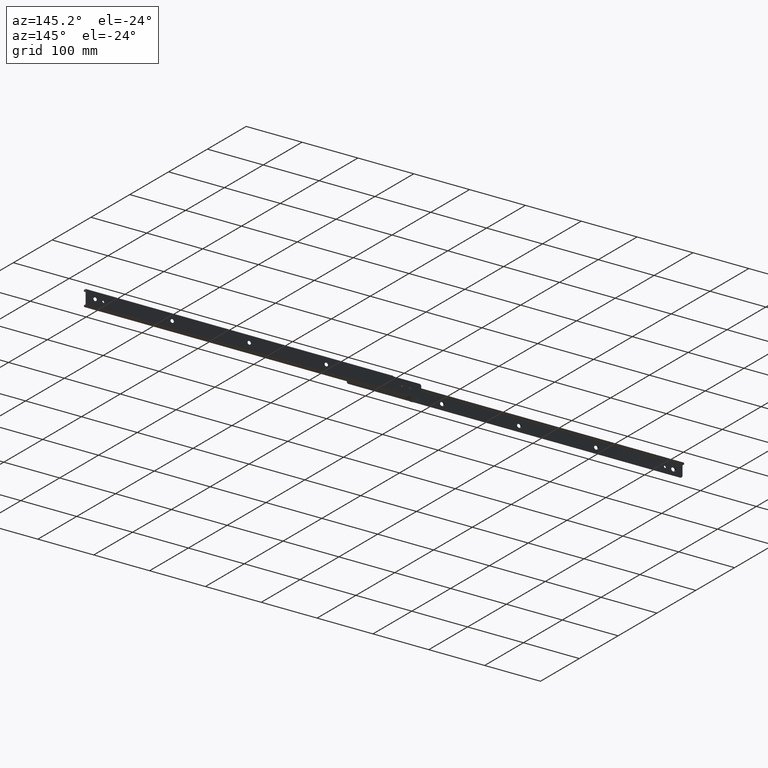
[diagram: clean part render]
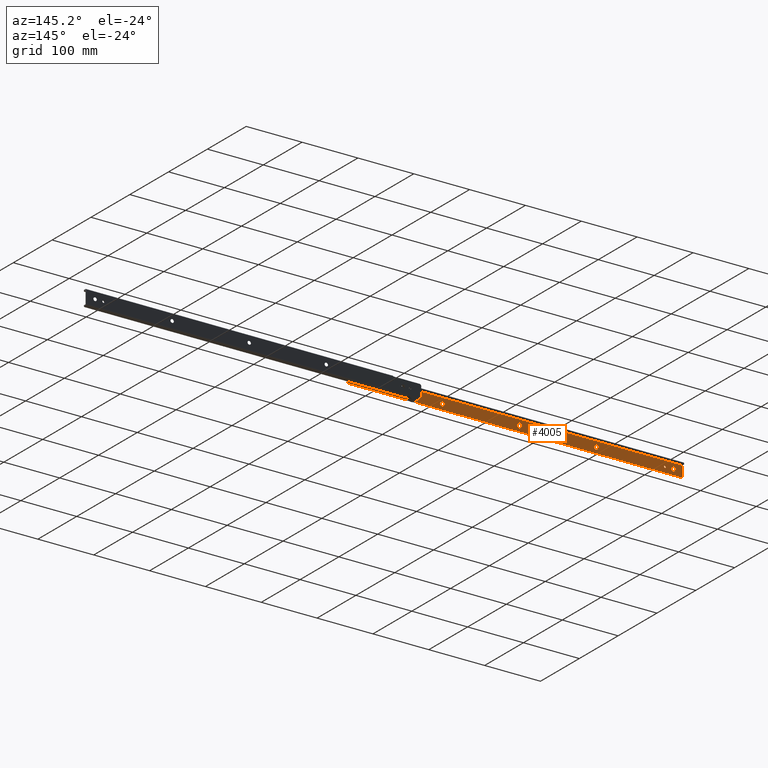
[diagram: same view with one face highlighted and labeled with its STEP entity id]
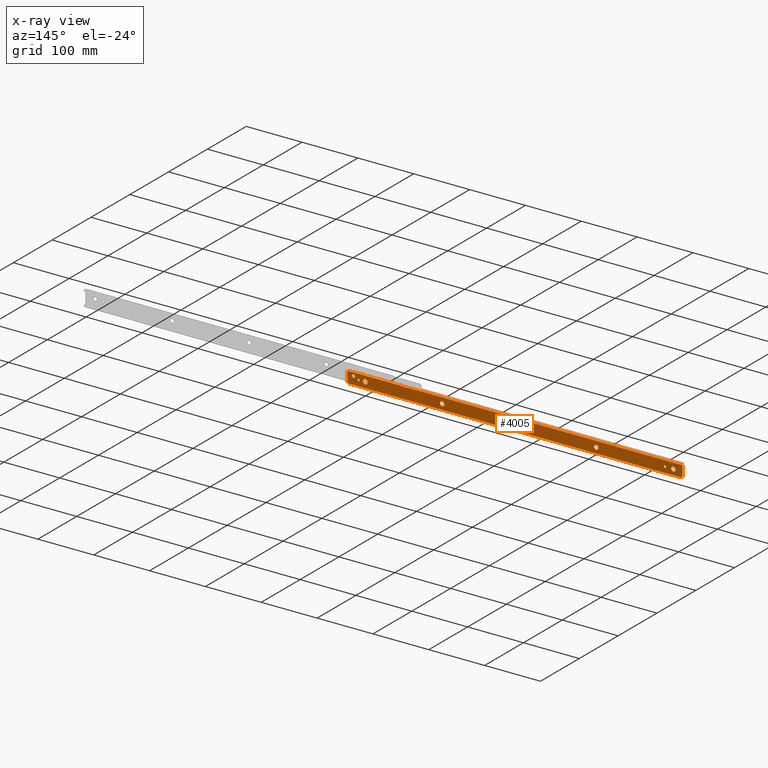
[diagram: x-ray of the same camera — body ghosted, the highlighted face saturated]
A machine part, auxiliary view. The second image highlights one B-rep face of the part: STEP entity #4005.
The next image is the same camera in x-ray: the body ghosted, the highlighted face saturated — about 0% of this face is hidden behind the body in this view.
In plain terms, the highlighted face is a freeform B-spline surface patch.
Its self-contained STEP definition (entity closure, byte-faithful):
#1375=CARTESIAN_POINT('',(93.0,-10.400000000000000,-7.299999999999800));
#1376=VERTEX_POINT('',#1375);
#1377=CARTESIAN_POINT('',(88.713255461834819,-10.399999988952240,-11.262625813513750));
#1378=VERTEX_POINT('',#1377);
#1379=CARTESIAN_POINT('',(93.0,-10.400000000000000,-7.299999999999800));
#1380=CARTESIAN_POINT('',(89.025121023809731,-10.400000000000000,-7.299999999999800));
#1381=CARTESIAN_POINT('',(88.713255461834819,-10.399999988952239,-11.262625813513758));
#1389=(BOUNDED_CURVE()B_SPLINE_CURVE(2,(#1379,#1380,#1381),.UNSPECIFIED.,.F.,.U.)B_SPLINE_CURVE_WITH_KNOTS((3,3),(0.500000000000000,0.736331294702170),.UNSPECIFIED.)CURVE()GEOMETRIC_REPRESENTATION_ITEM()RATIONAL_B_SPLINE_CURVE((1.0,0.723120665553323,0.969723343795113))REPRESENTATION_ITEM(''));
#1390=EDGE_CURVE('',#1376,#1378,#1389,.T.);
#1392=CARTESIAN_POINT('',(97.286744538165181,-10.399999988952240,-11.937374186485849));
#1393=VERTEX_POINT('',#1392);
#1394=CARTESIAN_POINT('',(97.286744538165181,-10.399999988952239,-11.937374186485846));
#1395=CARTESIAN_POINT('',(97.299999999999997,-10.400000000000000,-11.768947534628939));
#1396=CARTESIAN_POINT('',(97.299999999999997,-10.400000000000000,-11.599999999999801));
#1397=CARTESIAN_POINT('',(97.299999999999997,-10.400000000000000,-7.299999999999800));
#1398=CARTESIAN_POINT('',(93.0,-10.400000000000000,-7.299999999999800));
#1406=(BOUNDED_CURVE()B_SPLINE_CURVE(2,(#1394,#1395,#1396,#1397,#1398),.UNSPECIFIED.,.F.,.U.)B_SPLINE_CURVE_WITH_KNOTS((3,2,3),(0.236331294702171,0.250000000000000,0.500000000000000),.UNSPECIFIED.)CURVE()GEOMETRIC_REPRESENTATION_ITEM()RATIONAL_B_SPLINE_CURVE((0.969723343795114,0.983986115633225,1.0,0.707106781186547,1.0))REPRESENTATION_ITEM(''));
#1407=EDGE_CURVE('',#1393,#1376,#1406,.T.);
#1474=CARTESIAN_POINT('',(93.0,-10.400000000000000,-15.899999999999800));
#1475=VERTEX_POINT('',#1474);
#1476=CARTESIAN_POINT('',(88.713255461834819,-10.399999988952237,-11.262625813513752));
#1477=CARTESIAN_POINT('',(88.700000000000003,-10.400000000000000,-11.431052465370664));
#1478=CARTESIAN_POINT('',(88.700000000000003,-10.400000000000000,-11.599999999999801));
#1479=CARTESIAN_POINT('',(88.700000000000003,-10.400000000000000,-15.899999999999794));
#1480=CARTESIAN_POINT('',(93.0,-10.400000000000000,-15.899999999999800));
#1488=(BOUNDED_CURVE()B_SPLINE_CURVE(2,(#1476,#1477,#1478,#1479,#1480),.UNSPECIFIED.,.F.,.U.)B_SPLINE_CURVE_WITH_KNOTS((3,2,3),(0.736331294702171,0.750000000000000,1.0),.UNSPECIFIED.)CURVE()GEOMETRIC_REPRESENTATION_ITEM()RATIONAL_B_SPLINE_CURVE((0.969723343795114,0.983986115633225,1.0,0.707106781186547,1.0))REPRESENTATION_ITEM(''));
#1489=EDGE_CURVE('',#1378,#1475,#1488,.T.);
#1523=CARTESIAN_POINT('',(93.0,-10.400000000000000,-15.899999999999800));
#1524=CARTESIAN_POINT('',(96.974878976190297,-10.400000000000002,-15.899999999999796));
#1525=CARTESIAN_POINT('',(97.286744538165181,-10.399999988952237,-11.937374186485844));
#1533=(BOUNDED_CURVE()B_SPLINE_CURVE(2,(#1523,#1524,#1525),.UNSPECIFIED.,.F.,.U.)B_SPLINE_CURVE_WITH_KNOTS((3,3),(0.0,0.236331294702171),.UNSPECIFIED.)CURVE()GEOMETRIC_REPRESENTATION_ITEM()RATIONAL_B_SPLINE_CURVE((1.0,0.723120665553322,0.969723343795114))REPRESENTATION_ITEM(''));
#1534=EDGE_CURVE('',#1475,#1393,#1533,.T.);
#1557=CARTESIAN_POINT('',(-45.0,-10.400000000000000,-7.299999999999800));
#1558=VERTEX_POINT('',#1557);
#1559=CARTESIAN_POINT('',(-49.286744538165202,-10.399999988952240,-11.262625813513750));
#1560=VERTEX_POINT('',#1559);
#1561=CARTESIAN_POINT('',(-45.0,-10.400000000000000,-7.299999999999800));
#1562=CARTESIAN_POINT('',(-48.974878976190276,-10.400000000000000,-7.299999999999800));
#1563=CARTESIAN_POINT('',(-49.286744538165195,-10.399999988952239,-11.262625813513758));
#1571=(BOUNDED_CURVE()B_SPLINE_CURVE(2,(#1561,#1562,#1563),.UNSPECIFIED.,.F.,.U.)B_SPLINE_CURVE_WITH_KNOTS((3,3),(0.500000000000000,0.736331294702170),.UNSPECIFIED.)CURVE()GEOMETRIC_REPRESENTATION_ITEM()RATIONAL_B_SPLINE_CURVE((1.0,0.723120665553323,0.969723343795113))REPRESENTATION_ITEM(''));
#1572=EDGE_CURVE('',#1558,#1560,#1571,.T.);
#1574=CARTESIAN_POINT('',(-40.713255461834819,-10.399999988952240,-11.937374186485849));
#1575=VERTEX_POINT('',#1574);
#1576=CARTESIAN_POINT('',(-40.713255461834819,-10.399999988952239,-11.937374186485846));
#1577=CARTESIAN_POINT('',(-40.700000000000003,-10.400000000000000,-11.768947534628939));
#1578=CARTESIAN_POINT('',(-40.700000000000003,-10.400000000000000,-11.599999999999801));
#1579=CARTESIAN_POINT('',(-40.699999999999996,-10.400000000000000,-7.299999999999800));
#1580=CARTESIAN_POINT('',(-45.0,-10.400000000000000,-7.299999999999800));
#1588=(BOUNDED_CURVE()B_SPLINE_CURVE(2,(#1576,#1577,#1578,#1579,#1580),.UNSPECIFIED.,.F.,.U.)B_SPLINE_CURVE_WITH_KNOTS((3,2,3),(0.236331294702171,0.250000000000000,0.500000000000000),.UNSPECIFIED.)CURVE()GEOMETRIC_REPRESENTATION_ITEM()RATIONAL_B_SPLINE_CURVE((0.969723343795114,0.983986115633225,1.0,0.707106781186547,1.0))REPRESENTATION_ITEM(''));
#1589=EDGE_CURVE('',#1575,#1558,#1588,.T.);
#1656=CARTESIAN_POINT('',(-45.0,-10.400000000000000,-15.899999999999800));
#1657=VERTEX_POINT('',#1656);
#1658=CARTESIAN_POINT('',(-49.286744538165188,-10.399999988952235,-11.262625813513761));
#1659=CARTESIAN_POINT('',(-49.300000000000004,-10.399999999999999,-11.431052465370662));
#1660=CARTESIAN_POINT('',(-49.299999999999997,-10.400000000000000,-11.599999999999801));
#1661=CARTESIAN_POINT('',(-49.300000000000004,-10.400000000000000,-15.899999999999794));
#1662=CARTESIAN_POINT('',(-45.0,-10.400000000000000,-15.899999999999800));
#1670=(BOUNDED_CURVE()B_SPLINE_CURVE(2,(#1658,#1659,#1660,#1661,#1662),.UNSPECIFIED.,.F.,.U.)B_SPLINE_CURVE_WITH_KNOTS((3,2,3),(0.736331294702171,0.750000000000000,1.0),.UNSPECIFIED.)CURVE()GEOMETRIC_REPRESENTATION_ITEM()RATIONAL_B_SPLINE_CURVE((0.969723343795114,0.983986115633225,1.0,0.707106781186547,1.0))REPRESENTATION_ITEM(''));
#1671=EDGE_CURVE('',#1560,#1657,#1670,.T.);
#1705=CARTESIAN_POINT('',(-45.0,-10.400000000000000,-15.899999999999800));
#1706=CARTESIAN_POINT('',(-41.025121023809724,-10.400000000000002,-15.899999999999796));
#1707=CARTESIAN_POINT('',(-40.713255461834812,-10.399999988952246,-11.937374186485844));
#1715=(BOUNDED_CURVE()B_SPLINE_CURVE(2,(#1705,#1706,#1707),.UNSPECIFIED.,.F.,.U.)B_SPLINE_CURVE_WITH_KNOTS((3,3),(0.0,0.236331294702171),.UNSPECIFIED.)CURVE()GEOMETRIC_REPRESENTATION_ITEM()RATIONAL_B_SPLINE_CURVE((1.0,0.723120665553322,0.969723343795114))REPRESENTATION_ITEM(''));
#1716=EDGE_CURVE('',#1657,#1575,#1715,.T.);
#1739=CARTESIAN_POINT('',(-183.0,-10.400000000000000,-7.299999999999800));
#1740=VERTEX_POINT('',#1739);
#1741=CARTESIAN_POINT('',(-187.286744538165210,-10.399999988952240,-11.262625813513750));
#1742=VERTEX_POINT('',#1741);
#1743=CARTESIAN_POINT('',(-183.0,-10.400000000000000,-7.299999999999800));
#1744=CARTESIAN_POINT('',(-186.974878976190210,-10.400000000000000,-7.299999999999800));
#1745=CARTESIAN_POINT('',(-187.286744538165180,-10.399999988952239,-11.262625813513758));
#1753=(BOUNDED_CURVE()B_SPLINE_CURVE(2,(#1743,#1744,#1745),.UNSPECIFIED.,.F.,.U.)B_SPLINE_CURVE_WITH_KNOTS((3,3),(0.500000000000000,0.736331294702170),.UNSPECIFIED.)CURVE()GEOMETRIC_REPRESENTATION_ITEM()RATIONAL_B_SPLINE_CURVE((1.0,0.723120665553323,0.969723343795113))REPRESENTATION_ITEM(''));
#1754=EDGE_CURVE('',#1740,#1742,#1753,.T.);
#1756=CARTESIAN_POINT('',(-178.713255461834790,-10.399999988952240,-11.937374186485849));
#1757=VERTEX_POINT('',#1756);
#1758=CARTESIAN_POINT('',(-178.713255461834820,-10.399999988952240,-11.937374186485847));
#1759=CARTESIAN_POINT('',(-178.699999999999990,-10.400000000000000,-11.768947534628941));
#1760=CARTESIAN_POINT('',(-178.699999999999990,-10.400000000000000,-11.599999999999801));
#1761=CARTESIAN_POINT('',(-178.699999999999960,-10.400000000000000,-7.299999999999800));
#1762=CARTESIAN_POINT('',(-183.0,-10.400000000000000,-7.299999999999800));
#1770=(BOUNDED_CURVE()B_SPLINE_CURVE(2,(#1758,#1759,#1760,#1761,#1762),.UNSPECIFIED.,.F.,.U.)B_SPLINE_CURVE_WITH_KNOTS((3,2,3),(0.236331294702171,0.250000000000000,0.500000000000000),.UNSPECIFIED.)CURVE()GEOMETRIC_REPRESENTATION_ITEM()RATIONAL_B_SPLINE_CURVE((0.969723343795114,0.983986115633225,1.0,0.707106781186547,1.0))REPRESENTATION_ITEM(''));
#1771=EDGE_CURVE('',#1757,#1740,#1770,.T.);
#1838=CARTESIAN_POINT('',(-183.0,-10.400000000000000,-15.899999999999800));
#1839=VERTEX_POINT('',#1838);
#1840=CARTESIAN_POINT('',(-187.286744538165240,-10.399999988952244,-11.262625813513761));
#1841=CARTESIAN_POINT('',(-187.300000000000040,-10.399999999999999,-11.431052465370662));
#1842=CARTESIAN_POINT('',(-187.300000000000010,-10.400000000000000,-11.599999999999801));
#1843=CARTESIAN_POINT('',(-187.299999999999950,-10.400000000000000,-15.899999999999794));
#1844=CARTESIAN_POINT('',(-183.0,-10.400000000000000,-15.899999999999800));
#1852=(BOUNDED_CURVE()B_SPLINE_CURVE(2,(#1840,#1841,#1842,#1843,#1844),.UNSPECIFIED.,.F.,.U.)B_SPLINE_CURVE_WITH_KNOTS((3,2,3),(0.736331294702171,0.750000000000000,1.0),.UNSPECIFIED.)CURVE()GEOMETRIC_REPRESENTATION_ITEM()RATIONAL_B_SPLINE_CURVE((0.969723343795114,0.983986115633225,1.0,0.707106781186547,1.0))REPRESENTATION_ITEM(''));
#1853=EDGE_CURVE('',#1742,#1839,#1852,.T.);
#1887=CARTESIAN_POINT('',(-183.0,-10.400000000000000,-15.899999999999800));
#1888=CARTESIAN_POINT('',(-179.025121023809730,-10.400000000000002,-15.899999999999796));
#1889=CARTESIAN_POINT('',(-178.713255461834880,-10.399999988952237,-11.937374186485844));
#1897=(BOUNDED_CURVE()B_SPLINE_CURVE(2,(#1887,#1888,#1889),.UNSPECIFIED.,.F.,.U.)B_SPLINE_CURVE_WITH_KNOTS((3,3),(0.0,0.236331294702171),.UNSPECIFIED.)CURVE()GEOMETRIC_REPRESENTATION_ITEM()RATIONAL_B_SPLINE_CURVE((1.0,0.723120665553322,0.969723343795114))REPRESENTATION_ITEM(''));
#1898=EDGE_CURVE('',#1839,#1757,#1897,.T.);
#1921=CARTESIAN_POINT('',(-321.0,-10.400000000000000,-7.299999999999800));
#1922=VERTEX_POINT('',#1921);
#1923=CARTESIAN_POINT('',(-325.286744538165180,-10.399999988952230,-11.262625813513750));
#1924=VERTEX_POINT('',#1923);
#1925=CARTESIAN_POINT('',(-321.0,-10.400000000000000,-7.299999999999800));
#1926=CARTESIAN_POINT('',(-324.974878976190210,-10.400000000000000,-7.299999999999800));
#1927=CARTESIAN_POINT('',(-325.286744538165180,-10.399999988952230,-11.262625813513745));
#1935=(BOUNDED_CURVE()B_SPLINE_CURVE(2,(#1925,#1926,#1927),.UNSPECIFIED.,.F.,.U.)B_SPLINE_CURVE_WITH_KNOTS((3,3),(0.500000000000000,0.736331294702170),.UNSPECIFIED.)CURVE()GEOMETRIC_REPRESENTATION_ITEM()RATIONAL_B_SPLINE_CURVE((1.0,0.723120665553323,0.969723343795113))REPRESENTATION_ITEM(''));
#1936=EDGE_CURVE('',#1922,#1924,#1935,.T.);
#1938=CARTESIAN_POINT('',(-316.713255461834820,-10.399999988952249,-11.937374186485849));
#1939=VERTEX_POINT('',#1938);
#1940=CARTESIAN_POINT('',(-316.713255461834820,-10.399999988952246,-11.937374186485844));
#1941=CARTESIAN_POINT('',(-316.699999999999990,-10.399999999999999,-11.768947534628939));
#1942=CARTESIAN_POINT('',(-316.699999999999990,-10.400000000000000,-11.599999999999801));
#1943=CARTESIAN_POINT('',(-316.700000000000050,-10.400000000000000,-7.299999999999800));
#1944=CARTESIAN_POINT('',(-321.0,-10.400000000000000,-7.299999999999800));
#1952=(BOUNDED_CURVE()B_SPLINE_CURVE(2,(#1940,#1941,#1942,#1943,#1944),.UNSPECIFIED.,.F.,.U.)B_SPLINE_CURVE_WITH_KNOTS((3,2,3),(0.236331294702171,0.250000000000000,0.500000000000000),.UNSPECIFIED.)CURVE()GEOMETRIC_REPRESENTATION_ITEM()RATIONAL_B_SPLINE_CURVE((0.969723343795114,0.983986115633225,1.0,0.707106781186547,1.0))REPRESENTATION_ITEM(''));
#1953=EDGE_CURVE('',#1939,#1922,#1952,.T.);
#2020=CARTESIAN_POINT('',(-321.0,-10.400000000000000,-15.899999999999800));
#2021=VERTEX_POINT('',#2020);
#2022=CARTESIAN_POINT('',(-325.286744538165240,-10.399999988952228,-11.262625813513754));
#2023=CARTESIAN_POINT('',(-325.300000000000070,-10.400000000000000,-11.431052465370666));
#2024=CARTESIAN_POINT('',(-325.300000000000010,-10.400000000000000,-11.599999999999801));
#2025=CARTESIAN_POINT('',(-325.300000000000010,-10.400000000000000,-15.899999999999794));
#2026=CARTESIAN_POINT('',(-321.0,-10.400000000000000,-15.899999999999800));
#2034=(BOUNDED_CURVE()B_SPLINE_CURVE(2,(#2022,#2023,#2024,#2025,#2026),.UNSPECIFIED.,.F.,.U.)B_SPLINE_CURVE_WITH_KNOTS((3,2,3),(0.736331294702171,0.750000000000000,1.0),.UNSPECIFIED.)CURVE()GEOMETRIC_REPRESENTATION_ITEM()RATIONAL_B_SPLINE_CURVE((0.969723343795114,0.983986115633225,1.0,0.707106781186547,1.0))REPRESENTATION_ITEM(''));
#2035=EDGE_CURVE('',#1924,#2021,#2034,.T.);
#2069=CARTESIAN_POINT('',(-321.0,-10.400000000000000,-15.899999999999800));
#2070=CARTESIAN_POINT('',(-317.025121023809670,-10.400000000000000,-15.899999999999800));
#2071=CARTESIAN_POINT('',(-316.713255461834820,-10.399999988952246,-11.937374186485844));
#2079=(BOUNDED_CURVE()B_SPLINE_CURVE(2,(#2069,#2070,#2071),.UNSPECIFIED.,.F.,.U.)B_SPLINE_CURVE_WITH_KNOTS((3,3),(0.0,0.236331294702171),.UNSPECIFIED.)CURVE()GEOMETRIC_REPRESENTATION_ITEM()RATIONAL_B_SPLINE_CURVE((1.0,0.723120665553322,0.969723343795114))REPRESENTATION_ITEM(''));
#2080=EDGE_CURVE('',#2021,#1939,#2079,.T.);
#2103=CARTESIAN_POINT('',(-459.0,-10.400000000000000,-7.299999999999800));
#2104=VERTEX_POINT('',#2103);
#2105=CARTESIAN_POINT('',(-463.286744538165180,-10.399999988952230,-11.262625813513750));
#2106=VERTEX_POINT('',#2105);
#2107=CARTESIAN_POINT('',(-459.0,-10.400000000000000,-7.299999999999800));
#2108=CARTESIAN_POINT('',(-462.974878976190380,-10.400000000000000,-7.299999999999800));
#2109=CARTESIAN_POINT('',(-463.286744538165240,-10.399999988952230,-11.262625813513745));
#2117=(BOUNDED_CURVE()B_SPLINE_CURVE(2,(#2107,#2108,#2109),.UNSPECIFIED.,.F.,.U.)B_SPLINE_CURVE_WITH_KNOTS((3,3),(0.500000000000000,0.736331294702170),.UNSPECIFIED.)CURVE()GEOMETRIC_REPRESENTATION_ITEM()RATIONAL_B_SPLINE_CURVE((1.0,0.723120665553323,0.969723343795113))REPRESENTATION_ITEM(''));
#2118=EDGE_CURVE('',#2104,#2106,#2117,.T.);
#2120=CARTESIAN_POINT('',(-454.713255461834820,-10.399999988952230,-11.937374186485849));
#2121=VERTEX_POINT('',#2120);
#2122=CARTESIAN_POINT('',(-454.713255461834880,-10.399999988952231,-11.937374186485849));
#2123=CARTESIAN_POINT('',(-454.699999999999990,-10.400000000000002,-11.768947534628943));
#2124=CARTESIAN_POINT('',(-454.699999999999990,-10.400000000000000,-11.599999999999801));
#2125=CARTESIAN_POINT('',(-454.699999999999990,-10.400000000000000,-7.299999999999800));
#2126=CARTESIAN_POINT('',(-459.0,-10.400000000000000,-7.299999999999800));
#2134=(BOUNDED_CURVE()B_SPLINE_CURVE(2,(#2122,#2123,#2124,#2125,#2126),.UNSPECIFIED.,.F.,.U.)B_SPLINE_CURVE_WITH_KNOTS((3,2,3),(0.236331294702171,0.250000000000000,0.500000000000000),.UNSPECIFIED.)CURVE()GEOMETRIC_REPRESENTATION_ITEM()RATIONAL_B_SPLINE_CURVE((0.969723343795113,0.983986115633225,1.0,0.707106781186547,1.0))REPRESENTATION_ITEM(''));
#2135=EDGE_CURVE('',#2121,#2104,#2134,.T.);
#2202=CARTESIAN_POINT('',(-459.0,-10.400000000000000,-15.899999999999800));
#2203=VERTEX_POINT('',#2202);
#2204=CARTESIAN_POINT('',(-463.286744538165290,-10.399999988952228,-11.262625813513754));
#2205=CARTESIAN_POINT('',(-463.300000000000130,-10.400000000000000,-11.431052465370666));
#2206=CARTESIAN_POINT('',(-463.300000000000130,-10.400000000000000,-11.599999999999801));
#2207=CARTESIAN_POINT('',(-463.300000000000130,-10.400000000000000,-15.899999999999794));
#2208=CARTESIAN_POINT('',(-459.0,-10.400000000000000,-15.899999999999800));
#2216=(BOUNDED_CURVE()B_SPLINE_CURVE(2,(#2204,#2205,#2206,#2207,#2208),.UNSPECIFIED.,.F.,.U.)B_SPLINE_CURVE_WITH_KNOTS((3,2,3),(0.736331294702171,0.750000000000000,1.0),.UNSPECIFIED.)CURVE()GEOMETRIC_REPRESENTATION_ITEM()RATIONAL_B_SPLINE_CURVE((0.969723343795114,0.983986115633225,1.0,0.707106781186547,1.0))REPRESENTATION_ITEM(''));
#2217=EDGE_CURVE('',#2106,#2203,#2216,.T.);
#2251=CARTESIAN_POINT('',(-459.0,-10.400000000000000,-15.899999999999800));
#2252=CARTESIAN_POINT('',(-455.025121023809730,-10.400000000000000,-15.899999999999794));
#2253=CARTESIAN_POINT('',(-454.713255461834880,-10.399999988952228,-11.937374186485847));
#2261=(BOUNDED_CURVE()B_SPLINE_CURVE(2,(#2251,#2252,#2253),.UNSPECIFIED.,.F.,.U.)B_SPLINE_CURVE_WITH_KNOTS((3,3),(0.0,0.236331294702171),.UNSPECIFIED.)CURVE()GEOMETRIC_REPRESENTATION_ITEM()RATIONAL_B_SPLINE_CURVE((1.0,0.723120665553323,0.969723343795114))REPRESENTATION_ITEM(''));
#2262=EDGE_CURVE('',#2203,#2121,#2261,.T.);
#2289=CARTESIAN_POINT('',(111.070621901278000,-10.400000000000000,-7.251798973683257));
#2290=VERTEX_POINT('',#2289);
#2291=CARTESIAN_POINT('',(114.0,-10.400000000000000,-10.549999999999800));
#2292=VERTEX_POINT('',#2291);
#2293=CARTESIAN_POINT('',(111.070621901278050,-10.399999999999999,-7.251798973683258));
#2294=CARTESIAN_POINT('',(111.050000000000040,-10.400000000000004,-7.425288812587279));
#2295=CARTESIAN_POINT('',(111.050000000000000,-10.400000000000000,-7.599999999999800));
#2296=CARTESIAN_POINT('',(111.050000000000010,-10.400000000000000,-10.549999999999802));
#2297=CARTESIAN_POINT('',(114.0,-10.400000000000000,-10.549999999999800));
#2305=(BOUNDED_CURVE()B_SPLINE_CURVE(2,(#2293,#2294,#2295,#2296,#2297),.UNSPECIFIED.,.F.,.U.)B_SPLINE_CURVE_WITH_KNOTS((3,2,3),(0.729562469583424,0.750000000000000,1.0),.UNSPECIFIED.)CURVE()GEOMETRIC_REPRESENTATION_ITEM()RATIONAL_B_SPLINE_CURVE((0.956026746480574,0.976055943726765,1.0,0.707106781186548,1.0))REPRESENTATION_ITEM(''));
#2306=EDGE_CURVE('',#2290,#2292,#2305,.T.);
#2347=CARTESIAN_POINT('',(116.944497654649500,-10.400000000000000,-7.780093202991041));
#2348=VERTEX_POINT('',#2347);
#2354=CARTESIAN_POINT('',(114.0,-10.400000000000000,-10.549999999999800));
#2355=CARTESIAN_POINT('',(116.775082875912560,-10.400000000000002,-10.549999999999802));
#2356=CARTESIAN_POINT('',(116.944497654649450,-10.399999999999997,-7.780093202991041));
#2364=(BOUNDED_CURVE()B_SPLINE_CURVE(2,(#2354,#2355,#2356),.UNSPECIFIED.,.F.,.U.)B_SPLINE_CURVE_WITH_KNOTS((3,3),(0.0,0.239332960910182),.UNSPECIFIED.)CURVE()GEOMETRIC_REPRESENTATION_ITEM()RATIONAL_B_SPLINE_CURVE((1.0,0.719603994843450,0.976072038818931))REPRESENTATION_ITEM(''));
#2365=EDGE_CURVE('',#2292,#2348,#2364,.T.);
#2388=CARTESIAN_POINT('',(114.0,-10.400000000000000,-4.649999999999801));
#2389=VERTEX_POINT('',#2388);
#2390=CARTESIAN_POINT('',(114.0,-10.400000000000000,-4.649999999999801));
#2391=CARTESIAN_POINT('',(111.379885209835180,-10.400000000000000,-4.649999999999800));
#2392=CARTESIAN_POINT('',(111.070621901278050,-10.399999999999999,-7.251798973683258));
#2400=(BOUNDED_CURVE()B_SPLINE_CURVE(2,(#2390,#2391,#2392),.UNSPECIFIED.,.F.,.U.)B_SPLINE_CURVE_WITH_KNOTS((3,3),(0.500000000000000,0.729562469583424),.UNSPECIFIED.)CURVE()GEOMETRIC_REPRESENTATION_ITEM()RATIONAL_B_SPLINE_CURVE((1.0,0.731050837459783,0.956026746480574))REPRESENTATION_ITEM(''));
#2401=EDGE_CURVE('',#2389,#2290,#2400,.T.);
#2403=CARTESIAN_POINT('',(116.944497654649480,-10.400000000000000,-7.780093202991041));
#2404=CARTESIAN_POINT('',(116.950000000000050,-10.400000000000006,-7.690130663125911));
#2405=CARTESIAN_POINT('',(116.950000000000000,-10.400000000000000,-7.599999999999800));
#2406=CARTESIAN_POINT('',(116.950000000000000,-10.400000000000000,-4.649999999999801));
#2407=CARTESIAN_POINT('',(114.0,-10.400000000000000,-4.649999999999801));
#2415=(BOUNDED_CURVE()B_SPLINE_CURVE(2,(#2403,#2404,#2405,#2406,#2407),.UNSPECIFIED.,.F.,.U.)B_SPLINE_CURVE_WITH_KNOTS((3,2,3),(0.239332960910182,0.250000000000000,0.500000000000000),.UNSPECIFIED.)CURVE()GEOMETRIC_REPRESENTATION_ITEM()RATIONAL_B_SPLINE_CURVE((0.976072038818931,0.987502786343098,1.0,0.707106781186548,1.0))REPRESENTATION_ITEM(''));
#2416=EDGE_CURVE('',#2348,#2389,#2415,.T.);
#2475=CARTESIAN_POINT('',(103.013980952491100,-10.400000000000000,-11.363931486784260));
#2476=VERTEX_POINT('',#2475);
#2477=CARTESIAN_POINT('',(105.0,-10.400000000000000,-13.599999999999801));
#2478=VERTEX_POINT('',#2477);
#2479=CARTESIAN_POINT('',(103.013980952491080,-10.400000000000002,-11.363931486784260));
#2480=CARTESIAN_POINT('',(103.0,-10.400000000000002,-11.481551716329827));
#2481=CARTESIAN_POINT('',(103.0,-10.400000000000000,-11.599999999999801));
#2482=CARTESIAN_POINT('',(103.0,-10.400000000000000,-13.599999999999799));
#2483=CARTESIAN_POINT('',(105.0,-10.400000000000000,-13.599999999999801));
#2491=(BOUNDED_CURVE()B_SPLINE_CURVE(2,(#2479,#2480,#2481,#2482,#2483),.UNSPECIFIED.,.F.,.U.)B_SPLINE_CURVE_WITH_KNOTS((3,2,3),(0.729562466043829,0.750000000000000,1.0),.UNSPECIFIED.)CURVE()GEOMETRIC_REPRESENTATION_ITEM()RATIONAL_B_SPLINE_CURVE((0.956026739542822,0.976055939579871,1.0,0.707106781186548,1.0))REPRESENTATION_ITEM(''));
#2492=EDGE_CURVE('',#2476,#2478,#2491,.T.);
#2533=CARTESIAN_POINT('',(106.996269595184000,-10.400000000000000,-11.722097106205810));
#2534=VERTEX_POINT('',#2533);
#2540=CARTESIAN_POINT('',(105.0,-10.400000000000000,-13.599999999999801));
#2541=CARTESIAN_POINT('',(106.881412082565860,-10.400000000000000,-13.599999999999801));
#2542=CARTESIAN_POINT('',(106.996269595184030,-10.400000000000000,-11.722097106205814));
#2550=(BOUNDED_CURVE()B_SPLINE_CURVE(2,(#2540,#2541,#2542),.UNSPECIFIED.,.F.,.U.)B_SPLINE_CURVE_WITH_KNOTS((3,3),(0.0,0.239332957550938),.UNSPECIFIED.)CURVE()GEOMETRIC_REPRESENTATION_ITEM()RATIONAL_B_SPLINE_CURVE((1.0,0.719603998779049,0.976072031619432))REPRESENTATION_ITEM(''));
#2551=EDGE_CURVE('',#2478,#2534,#2550,.T.);
#2574=CARTESIAN_POINT('',(105.0,-10.400000000000000,-9.599999999999799));
#2575=VERTEX_POINT('',#2574);
#2576=CARTESIAN_POINT('',(105.0,-10.400000000000000,-9.599999999999799));
#2577=CARTESIAN_POINT('',(103.223651027184400,-10.400000000000000,-9.599999999999799));
#2578=CARTESIAN_POINT('',(103.013980952491080,-10.400000000000002,-11.363931486784267));
#2586=(BOUNDED_CURVE()B_SPLINE_CURVE(2,(#2576,#2577,#2578),.UNSPECIFIED.,.F.,.U.)B_SPLINE_CURVE_WITH_KNOTS((3,3),(0.500000000000000,0.729562466043829),.UNSPECIFIED.)CURVE()GEOMETRIC_REPRESENTATION_ITEM()RATIONAL_B_SPLINE_CURVE((1.0,0.731050841606676,0.956026739542822))REPRESENTATION_ITEM(''));
#2587=EDGE_CURVE('',#2575,#2476,#2586,.T.);
#2589=CARTESIAN_POINT('',(106.996269595184050,-10.400000000000002,-11.722097106205807));
#2590=CARTESIAN_POINT('',(106.999999999999990,-10.399999999999999,-11.661105553809357));
#2591=CARTESIAN_POINT('',(107.0,-10.400000000000000,-11.599999999999801));
#2592=CARTESIAN_POINT('',(107.000000000000010,-10.400000000000000,-9.599999999999799));
#2593=CARTESIAN_POINT('',(105.0,-10.400000000000000,-9.599999999999799));
#2601=(BOUNDED_CURVE()B_SPLINE_CURVE(2,(#2589,#2590,#2591,#2592,#2593),.UNSPECIFIED.,.F.,.U.)B_SPLINE_CURVE_WITH_KNOTS((3,2,3),(0.239332957550938,0.250000000000000,0.500000000000000),.UNSPECIFIED.)CURVE()GEOMETRIC_REPRESENTATION_ITEM()RATIONAL_B_SPLINE_CURVE((0.976072031619431,0.987502782407498,1.0,0.707106781186548,1.0))REPRESENTATION_ITEM(''));
#2602=EDGE_CURVE('',#2534,#2575,#2601,.T.);
#2661=CARTESIAN_POINT('',(-445.986019047508880,-10.400000000000000,-11.363931486784260));
#2662=VERTEX_POINT('',#2661);
#2663=CARTESIAN_POINT('',(-444.0,-10.400000000000000,-13.599999999999801));
#2664=VERTEX_POINT('',#2663);
#2665=CARTESIAN_POINT('',(-445.986019047508990,-10.400000000000000,-11.363931486784265));
#2666=CARTESIAN_POINT('',(-446.0,-10.400000000000004,-11.481551716329831));
#2667=CARTESIAN_POINT('',(-446.0,-10.400000000000000,-11.599999999999801));
#2668=CARTESIAN_POINT('',(-445.999999999999940,-10.400000000000000,-13.599999999999799));
#2669=CARTESIAN_POINT('',(-444.0,-10.400000000000000,-13.599999999999801));
#2677=(BOUNDED_CURVE()B_SPLINE_CURVE(2,(#2665,#2666,#2667,#2668,#2669),.UNSPECIFIED.,.F.,.U.)B_SPLINE_CURVE_WITH_KNOTS((3,2,3),(0.729562466043828,0.750000000000000,1.0),.UNSPECIFIED.)CURVE()GEOMETRIC_REPRESENTATION_ITEM()RATIONAL_B_SPLINE_CURVE((0.956026739542822,0.976055939579871,1.0,0.707106781186548,1.0))REPRESENTATION_ITEM(''));
#2678=EDGE_CURVE('',#2662,#2664,#2677,.T.);
#2719=CARTESIAN_POINT('',(-442.003730404816000,-10.400000000000000,-11.722097106205810));
#2720=VERTEX_POINT('',#2719);
#2726=CARTESIAN_POINT('',(-444.0,-10.400000000000000,-13.599999999999801));
#2727=CARTESIAN_POINT('',(-442.118587917434130,-10.400000000000000,-13.599999999999801));
#2728=CARTESIAN_POINT('',(-442.003730404816050,-10.399999999999997,-11.722097106205810));
#2736=(BOUNDED_CURVE()B_SPLINE_CURVE(2,(#2726,#2727,#2728),.UNSPECIFIED.,.F.,.U.)B_SPLINE_CURVE_WITH_KNOTS((3,3),(0.0,0.239332957550938),.UNSPECIFIED.)CURVE()GEOMETRIC_REPRESENTATION_ITEM()RATIONAL_B_SPLINE_CURVE((1.0,0.719603998779050,0.976072031619431))REPRESENTATION_ITEM(''));
#2737=EDGE_CURVE('',#2664,#2720,#2736,.T.);
#2760=CARTESIAN_POINT('',(-444.0,-10.400000000000000,-9.599999999999799));
#2761=VERTEX_POINT('',#2760);
#2762=CARTESIAN_POINT('',(-444.0,-10.400000000000000,-9.599999999999799));
#2763=CARTESIAN_POINT('',(-445.776348972815580,-10.400000000000000,-9.599999999999799));
#2764=CARTESIAN_POINT('',(-445.986019047508930,-10.400000000000000,-11.363931486784255));
#2772=(BOUNDED_CURVE()B_SPLINE_CURVE(2,(#2762,#2763,#2764),.UNSPECIFIED.,.F.,.U.)B_SPLINE_CURVE_WITH_KNOTS((3,3),(0.500000000000000,0.729562466043829),.UNSPECIFIED.)CURVE()GEOMETRIC_REPRESENTATION_ITEM()RATIONAL_B_SPLINE_CURVE((1.0,0.731050841606676,0.956026739542822))REPRESENTATION_ITEM(''));
#2773=EDGE_CURVE('',#2761,#2662,#2772,.T.);
#2775=CARTESIAN_POINT('',(-442.003730404816050,-10.400000000000004,-11.722097106205808));
#2776=CARTESIAN_POINT('',(-441.999999999999940,-10.399999999999999,-11.661105553809357));
#2777=CARTESIAN_POINT('',(-442.0,-10.400000000000000,-11.599999999999801));
#2778=CARTESIAN_POINT('',(-441.999999999999940,-10.400000000000000,-9.599999999999799));
#2779=CARTESIAN_POINT('',(-444.0,-10.400000000000000,-9.599999999999799));
#2787=(BOUNDED_CURVE()B_SPLINE_CURVE(2,(#2775,#2776,#2777,#2778,#2779),.UNSPECIFIED.,.F.,.U.)B_SPLINE_CURVE_WITH_KNOTS((3,2,3),(0.239332957550938,0.250000000000000,0.500000000000000),.UNSPECIFIED.)CURVE()GEOMETRIC_REPRESENTATION_ITEM()RATIONAL_B_SPLINE_CURVE((0.976072031619431,0.987502782407498,1.0,0.707106781186548,1.0))REPRESENTATION_ITEM(''));
#2788=EDGE_CURVE('',#2720,#2761,#2787,.T.);
#3242=CARTESIAN_POINT('',(28.0,-10.400000000000000,-1.999999999999800));
#3243=VERTEX_POINT('',#3242);
#3244=CARTESIAN_POINT('',(14.0,-10.400000000000000,-1.999999999999800));
#3245=VERTEX_POINT('',#3244);
#3246=CARTESIAN_POINT('',(28.0,-10.400000000000000,-1.999999999999800));
#3247=CARTESIAN_POINT('',(14.0,-10.400000000000000,-1.999999999999800));
#3248=QUASI_UNIFORM_CURVE('',1,(#3246,#3247),.UNSPECIFIED.,.F.,.U.);
#3249=EDGE_CURVE('',#3243,#3245,#3248,.T.);
#3304=CARTESIAN_POINT('',(122.0,-10.400000000000000,-21.600000000000001));
#3305=VERTEX_POINT('',#3304);
#3311=CARTESIAN_POINT('',(125.0,-10.400000000000000,-18.600000000000001));
#3312=VERTEX_POINT('',#3311);
#3313=CARTESIAN_POINT('',(125.0,-10.400000000000000,-18.600000000000001));
#3314=CARTESIAN_POINT('',(125.0,-10.400000000000000,-21.600000000000005));
#3315=CARTESIAN_POINT('',(122.0,-10.400000000000000,-21.600000000000001));
#3323=(BOUNDED_CURVE()B_SPLINE_CURVE(2,(#3313,#3314,#3315),.UNSPECIFIED.,.F.,.U.)CURVE()GEOMETRIC_REPRESENTATION_ITEM()QUASI_UNIFORM_CURVE()RATIONAL_B_SPLINE_CURVE((1.0,0.707106781186548,1.0))REPRESENTATION_ITEM(''));
#3324=EDGE_CURVE('',#3312,#3305,#3323,.T.);
#3348=CARTESIAN_POINT('',(122.0,-10.400000000000000,-1.599999999999795));
#3349=VERTEX_POINT('',#3348);
#3350=CARTESIAN_POINT('',(125.0,-10.400000000000000,-4.599999999999800));
#3351=VERTEX_POINT('',#3350);
#3352=CARTESIAN_POINT('',(122.0,-10.400000000000000,-1.599999999999800));
#3353=CARTESIAN_POINT('',(125.0,-10.400000000000000,-1.599999999999799));
#3354=CARTESIAN_POINT('',(125.0,-10.400000000000000,-4.599999999999800));
#3362=(BOUNDED_CURVE()B_SPLINE_CURVE(2,(#3352,#3353,#3354),.UNSPECIFIED.,.F.,.U.)CURVE()GEOMETRIC_REPRESENTATION_ITEM()QUASI_UNIFORM_CURVE()RATIONAL_B_SPLINE_CURVE((1.0,0.707106781186548,1.0))REPRESENTATION_ITEM(''));
#3363=EDGE_CURVE('',#3349,#3351,#3362,.T.);
#3548=CARTESIAN_POINT('',(-475.0,-10.400000000000000,-18.600000000000001));
#3549=VERTEX_POINT('',#3548);
#3555=CARTESIAN_POINT('',(-472.0,-10.400000000000000,-21.600000000000001));
#3556=VERTEX_POINT('',#3555);
#3557=CARTESIAN_POINT('',(-472.0,-10.400000000000000,-21.600000000000001));
#3558=CARTESIAN_POINT('',(-475.0,-10.400000000000000,-21.600000000000005));
#3559=CARTESIAN_POINT('',(-475.0,-10.400000000000000,-18.600000000000001));
#3567=(BOUNDED_CURVE()B_SPLINE_CURVE(2,(#3557,#3558,#3559),.UNSPECIFIED.,.F.,.U.)CURVE()GEOMETRIC_REPRESENTATION_ITEM()QUASI_UNIFORM_CURVE()RATIONAL_B_SPLINE_CURVE((1.0,0.707106781186548,1.0))REPRESENTATION_ITEM(''));
#3568=EDGE_CURVE('',#3556,#3549,#3567,.T.);
#3591=CARTESIAN_POINT('',(103.0,-10.400000000000000,-1.599999999999795));
#3592=VERTEX_POINT('',#3591);
#3593=CARTESIAN_POINT('',(122.0,-10.400000000000000,-1.599999999999795));
#3594=CARTESIAN_POINT('',(103.0,-10.400000000000000,-1.599999999999795));
#3595=QUASI_UNIFORM_CURVE('',1,(#3593,#3594),.UNSPECIFIED.,.F.,.U.);
#3596=EDGE_CURVE('',#3349,#3592,#3595,.T.);
#3646=CARTESIAN_POINT('',(-475.0,-10.400000000000000,-1.599999999999795));
#3647=VERTEX_POINT('',#3646);
#3648=CARTESIAN_POINT('',(-475.0,-10.400000000000000,-18.600000000000001));
#3649=CARTESIAN_POINT('',(-475.0,-10.400000000000000,-1.599999999999795));
#3650=QUASI_UNIFORM_CURVE('',1,(#3648,#3649),.UNSPECIFIED.,.F.,.U.);
#3651=EDGE_CURVE('',#3549,#3647,#3650,.T.);
#3695=CARTESIAN_POINT('',(125.0,-10.400000000000000,-18.600000000000001));
#3696=CARTESIAN_POINT('',(125.0,-10.400000000000000,-4.599999999999800));
#3697=QUASI_UNIFORM_CURVE('',1,(#3695,#3696),.UNSPECIFIED.,.F.,.U.);
#3698=EDGE_CURVE('',#3312,#3351,#3697,.T.);
#3715=CARTESIAN_POINT('',(122.0,-10.400000000000000,-21.600000000000001));
#3716=CARTESIAN_POINT('',(-472.0,-10.400000000000000,-21.600000000000001));
#3717=QUASI_UNIFORM_CURVE('',1,(#3715,#3716),.UNSPECIFIED.,.F.,.U.);
#3718=EDGE_CURVE('',#3305,#3556,#3717,.T.);
#3891=CARTESIAN_POINT('',(28.0,-10.400000000000000,-1.599999999999795));
#3892=VERTEX_POINT('',#3891);
#3893=CARTESIAN_POINT('',(103.0,-10.400000000000000,-1.599999999999795));
#3894=CARTESIAN_POINT('',(28.0,-10.400000000000000,-1.599999999999795));
#3895=QUASI_UNIFORM_CURVE('',1,(#3893,#3894),.UNSPECIFIED.,.F.,.U.);
#3896=EDGE_CURVE('',#3592,#3892,#3895,.T.);
#3911=CARTESIAN_POINT('',(14.0,-10.400000000000000,-1.599999999999795));
#3912=VERTEX_POINT('',#3911);
#3918=CARTESIAN_POINT('',(14.0,-10.400000000000000,-1.599999999999795));
#3919=CARTESIAN_POINT('',(-475.0,-10.400000000000000,-1.599999999999795));
#3920=QUASI_UNIFORM_CURVE('',1,(#3918,#3919),.UNSPECIFIED.,.F.,.U.);
#3921=EDGE_CURVE('',#3912,#3647,#3920,.T.);
#3930=CARTESIAN_POINT('',(-504.969998837083610,-10.400000000000000,-0.601000038763667));
#3931=CARTESIAN_POINT('',(-504.969998837083610,-10.400000000000000,-22.599000497677942));
#3932=CARTESIAN_POINT('',(154.970014930337700,-10.400000000000000,-0.601000038763667));
#3933=CARTESIAN_POINT('',(154.970014930337700,-10.400000000000000,-22.599000497677942));
#3934=B_SPLINE_SURFACE_WITH_KNOTS('',1,1,((#3930,#3932),(#3931,#3933)),.UNSPECIFIED.,.F.,.F.,.U.,(2,2),(2,2),(0.0,21.998000458914269),(0.0,659.940013767421190),.UNSPECIFIED.);
#3935=CARTESIAN_POINT('',(14.0,-10.400000000000000,-1.999999999999800));
#3936=CARTESIAN_POINT('',(14.0,-10.400000000000000,-1.599999999999795));
#3937=QUASI_UNIFORM_CURVE('',1,(#3935,#3936),.UNSPECIFIED.,.F.,.U.);
#3938=EDGE_CURVE('',#3245,#3912,#3937,.T.);
#3939=ORIENTED_EDGE('',*,*,#3938,.F.);
#3940=ORIENTED_EDGE('',*,*,#3249,.F.);
#3941=CARTESIAN_POINT('',(28.0,-10.400000000000000,-1.599999999999795));
#3942=CARTESIAN_POINT('',(28.0,-10.400000000000000,-1.999999999999800));
#3943=QUASI_UNIFORM_CURVE('',1,(#3941,#3942),.UNSPECIFIED.,.F.,.U.);
#3944=EDGE_CURVE('',#3892,#3243,#3943,.T.);
#3945=ORIENTED_EDGE('',*,*,#3944,.F.);
#3946=ORIENTED_EDGE('',*,*,#3896,.F.);
#3947=ORIENTED_EDGE('',*,*,#3596,.F.);
#3948=ORIENTED_EDGE('',*,*,#3363,.T.);
#3949=ORIENTED_EDGE('',*,*,#3698,.F.);
#3950=ORIENTED_EDGE('',*,*,#3324,.T.);
#3951=ORIENTED_EDGE('',*,*,#3718,.T.);
#3952=ORIENTED_EDGE('',*,*,#3568,.T.);
#3953=ORIENTED_EDGE('',*,*,#3651,.T.);
#3954=ORIENTED_EDGE('',*,*,#3921,.F.);
#3955=EDGE_LOOP('',(#3939,#3940,#3945,#3946,#3947,#3948,#3949,#3950,#3951,#3952,#3953,#3954));
#3956=FACE_OUTER_BOUND('',#3955,.T.);
#3957=ORIENTED_EDGE('',*,*,#2737,.T.);
#3958=ORIENTED_EDGE('',*,*,#2788,.T.);
#3959=ORIENTED_EDGE('',*,*,#2773,.T.);
#3960=ORIENTED_EDGE('',*,*,#2678,.T.);
#3961=EDGE_LOOP('',(#3957,#3958,#3959,#3960));
#3962=FACE_BOUND('',#3961,.T.);
#3963=ORIENTED_EDGE('',*,*,#2551,.T.);
#3964=ORIENTED_EDGE('',*,*,#2602,.T.);
#3965=ORIENTED_EDGE('',*,*,#2587,.T.);
#3966=ORIENTED_EDGE('',*,*,#2492,.T.);
#3967=EDGE_LOOP('',(#3963,#3964,#3965,#3966));
#3968=FACE_BOUND('',#3967,.T.);
#3969=ORIENTED_EDGE('',*,*,#2365,.T.);
#3970=ORIENTED_EDGE('',*,*,#2416,.T.);
#3971=ORIENTED_EDGE('',*,*,#2401,.T.);
#3972=ORIENTED_EDGE('',*,*,#2306,.T.);
#3973=EDGE_LOOP('',(#3969,#3970,#3971,#3972));
#3974=FACE_BOUND('',#3973,.T.);
#3975=ORIENTED_EDGE('',*,*,#2262,.T.);
#3976=ORIENTED_EDGE('',*,*,#2135,.T.);
#3977=ORIENTED_EDGE('',*,*,#2118,.T.);
#3978=ORIENTED_EDGE('',*,*,#2217,.T.);
#3979=EDGE_LOOP('',(#3975,#3976,#3977,#3978));
#3980=FACE_BOUND('',#3979,.T.);
#3981=ORIENTED_EDGE('',*,*,#2080,.T.);
#3982=ORIENTED_EDGE('',*,*,#1953,.T.);
#3983=ORIENTED_EDGE('',*,*,#1936,.T.);
#3984=ORIENTED_EDGE('',*,*,#2035,.T.);
#3985=EDGE_LOOP('',(#3981,#3982,#3983,#3984));
#3986=FACE_BOUND('',#3985,.T.);
#3987=ORIENTED_EDGE('',*,*,#1898,.T.);
#3988=ORIENTED_EDGE('',*,*,#1771,.T.);
#3989=ORIENTED_EDGE('',*,*,#1754,.T.);
#3990=ORIENTED_EDGE('',*,*,#1853,.T.);
#3991=EDGE_LOOP('',(#3987,#3988,#3989,#3990));
#3992=FACE_BOUND('',#3991,.T.);
#3993=ORIENTED_EDGE('',*,*,#1716,.T.);
#3994=ORIENTED_EDGE('',*,*,#1589,.T.);
#3995=ORIENTED_EDGE('',*,*,#1572,.T.);
#3996=ORIENTED_EDGE('',*,*,#1671,.T.);
#3997=EDGE_LOOP('',(#3993,#3994,#3995,#3996));
#3998=FACE_BOUND('',#3997,.T.);
#3999=ORIENTED_EDGE('',*,*,#1534,.T.);
#4000=ORIENTED_EDGE('',*,*,#1407,.T.);
#4001=ORIENTED_EDGE('',*,*,#1390,.T.);
#4002=ORIENTED_EDGE('',*,*,#1489,.T.);
#4003=EDGE_LOOP('',(#3999,#4000,#4001,#4002));
#4004=FACE_BOUND('',#4003,.T.);
#4005=ADVANCED_FACE('',(#3956,#3962,#3968,#3974,#3980,#3986,#3992,#3998,#4004),#3934,.F.);